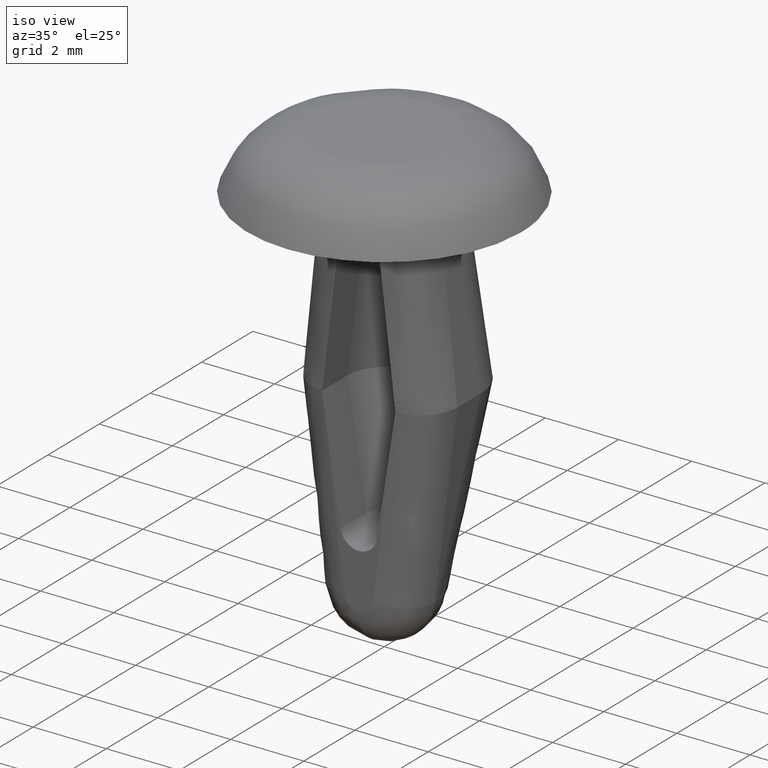
[diagram: clean part render]
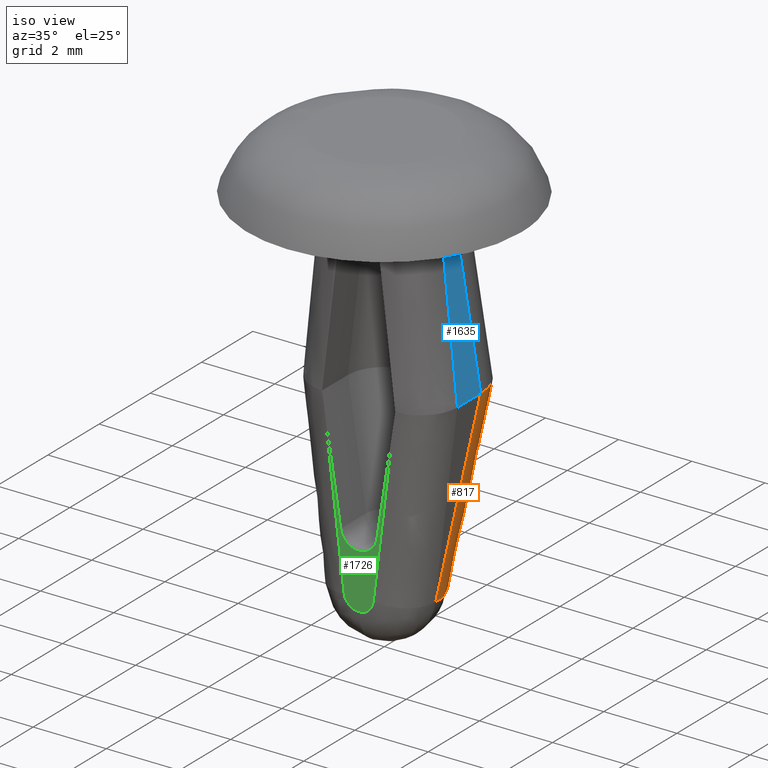
[diagram: same view with three faces highlighted in distinct colors, each labeled with its STEP entity id]
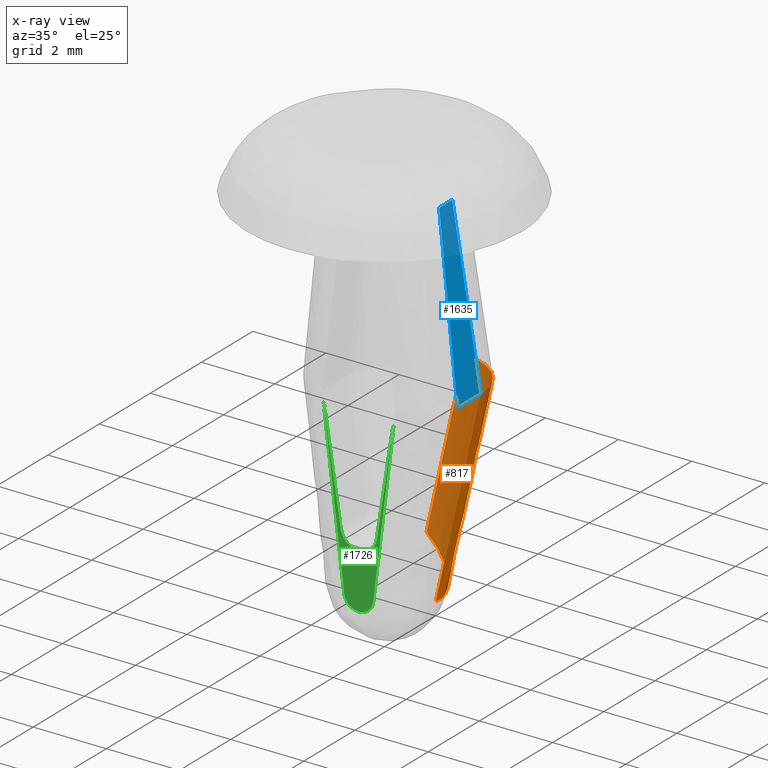
[diagram: x-ray of the same camera — body ghosted, the three highlighted faces saturated]
A machine part, iso view with three faces highlighted in distinct colors.
The next image is the same camera in x-ray (body ghosted, the three faces saturated) — at least one of them is partly hidden behind the body in this view.
Their STEP definitions:

[orange] entity #817 — the highlighted face is a freeform B-spline surface patch.
#547=CARTESIAN_POINT('',(-0.000000418702529,1.645494502491510,-9.042271304584160));
#548=VERTEX_POINT('',#547);
#724=CARTESIAN_POINT('',(1.389560529295354,0.024928488902565,-9.770648330865120));
#725=VERTEX_POINT('',#724);
#726=CARTESIAN_POINT('',(-0.000000418702529,1.645494502491510,-9.042271304584160));
#727=CARTESIAN_POINT('',(1.360520914315762,1.473893205990461,-10.007110402412607));
#728=CARTESIAN_POINT('',(1.389560529295354,0.024928488902565,-9.770648330865120));
#736=(BOUNDED_CURVE()B_SPLINE_CURVE(2,(#726,#727,#728),.UNSPECIFIED.,.F.,.U.)CURVE()GEOMETRIC_REPRESENTATION_ITEM()QUASI_UNIFORM_CURVE()RATIONAL_B_SPLINE_CURVE((1.0,0.714613293480517,1.0))REPRESENTATION_ITEM(''));
#737=EDGE_CURVE('',#548,#725,#736,.T.);
#758=CARTESIAN_POINT('',(-0.159652838794141,1.479407889092201,-9.972230576318115));
#759=CARTESIAN_POINT('',(0.496886918963579,2.430224809855529,-4.626202552436303));
#760=CARTESIAN_POINT('',(1.450201535181682,1.493349490186321,-10.172414583240140));
#761=CARTESIAN_POINT('',(2.106741292939402,2.444166410949650,-4.826386559358332));
#762=CARTESIAN_POINT('',(1.372545218096927,-0.100395840816531,-9.879422387779316));
#763=CARTESIAN_POINT('',(2.029084975854648,0.850421079946797,-4.533394363897503));
#771=(BOUNDED_SURFACE()B_SPLINE_SURFACE(1,2,((#758,#760,#762),(#759,#761,#763)),.UNSPECIFIED.,.F.,.F.,.U.)B_SPLINE_SURFACE_WITH_KNOTS((2,2),(3,3),(0.0,5.469470989269082),(0.0,2.624035839869206),.UNSPECIFIED.)GEOMETRIC_REPRESENTATION_ITEM()RATIONAL_B_SPLINE_SURFACE(((1.0,0.677557345320954,0.996089581025577),(1.0,0.677557345320954,0.996089581025577)))REPRESENTATION_ITEM('')SURFACE());
#772=CARTESIAN_POINT('',(0.520943819466832,2.399938678297810,-4.800361407695790));
#773=VERTEX_POINT('',#772);
#774=CARTESIAN_POINT('',(2.000001623200230,0.908983743961644,-4.799989782713739));
#775=VERTEX_POINT('',#774);
#776=CARTESIAN_POINT('',(0.520943819466832,2.399938678297810,-4.800361407695790));
#777=CARTESIAN_POINT('',(0.618884103170182,2.399233366905667,-4.804326990921790));
#778=CARTESIAN_POINT('',(0.715780886173529,2.389095961059905,-4.807319905411250));
#779=CARTESIAN_POINT('',(0.859538772959732,2.359673362047377,-4.810806485591058));
#780=CARTESIAN_POINT('',(0.906947518512434,2.347510272183143,-4.811789747635078));
#781=CARTESIAN_POINT('',(0.999630959070378,2.318863757834561,-4.813430339287654));
#782=CARTESIAN_POINT('',(1.090528925581082,2.285829076609933,-4.814753099230432));
#783=CARTESIAN_POINT('',(1.177883793335737,2.244088853452452,-4.815520424814058));
#784=CARTESIAN_POINT('',(1.263431246731924,2.197908725505066,-4.816036103585936));
#785=CARTESIAN_POINT('',(1.305517899345404,2.172438069273731,-4.816167584576827));
#786=CARTESIAN_POINT('',(1.426684750616770,2.090641800939267,-4.816212913102325));
#787=CARTESIAN_POINT('',(1.501091026351683,2.028915711152891,-4.815788719153205));
#788=CARTESIAN_POINT('',(1.603318062746900,1.925730195505545,-4.814637877312135));
#789=CARTESIAN_POINT('',(1.635819179930320,1.889556728783031,-4.814167613132538));
#790=CARTESIAN_POINT('',(1.697565644319385,1.813532543464080,-4.813075695626242));
#791=CARTESIAN_POINT('',(1.726387246388040,1.774190512853013,-4.812461277628021));
#792=CARTESIAN_POINT('',(1.806465720604447,1.652902193336813,-4.810473213843427));
#793=CARTESIAN_POINT('',(1.851600222984605,1.567470094839923,-4.808947501559089));
#794=CARTESIAN_POINT('',(1.906844481790242,1.432413480060798,-4.806586338203886));
#795=CARTESIAN_POINT('',(1.923217079821123,1.386011577498836,-4.805784229400286));
#796=CARTESIAN_POINT('',(1.951076827286609,1.292731784356880,-4.804244490599771));
#797=CARTESIAN_POINT('',(1.962653640848110,1.245692341359379,-4.803503524564784));
#798=CARTESIAN_POINT('',(1.990502896841904,1.103404241093388,-4.801474837513355));
#799=CARTESIAN_POINT('',(1.999957878426999,1.006997059844217,-4.800345984727122));
#800=CARTESIAN_POINT('',(2.000001623200230,0.908983743961644,-4.799989782713739));
#801=B_SPLINE_CURVE_WITH_KNOTS('',3,(#776,#777,#778,#779,#780,#781,#782,#783,#784,#785,#786,#787,#788,#789,#790,#791,#792,#793,#794,#795,#796,#797,#798,#799,#800),.UNSPECIFIED.,.F.,.U.,(4,2,2,1,2,2,2,2,2,2,2,2,4),(0.0,0.125000000000000,0.187500000000000,0.250000000000000,0.312500000000000,0.375000000000000,0.500000000000000,0.562500000000000,0.625000000000000,0.750000000000000,0.812500000000000,0.875000000000000,1.0),.UNSPECIFIED.);
#802=EDGE_CURVE('',#773,#775,#801,.T.);
#803=ORIENTED_EDGE('',*,*,#802,.T.);
#804=CARTESIAN_POINT('',(1.389560529295354,0.024928488902565,-9.770648330865120));
#805=CARTESIAN_POINT('',(2.000001623200230,0.908983743961644,-4.799989782713739));
#806=QUASI_UNIFORM_CURVE('',1,(#804,#805),.UNSPECIFIED.,.F.,.U.);
#807=EDGE_CURVE('',#725,#775,#806,.T.);
#808=ORIENTED_EDGE('',*,*,#807,.F.);
#809=ORIENTED_EDGE('',*,*,#737,.F.);
#810=CARTESIAN_POINT('',(0.520943819466832,2.399938678297810,-4.800361407695790));
#811=CARTESIAN_POINT('',(-0.000000418702529,1.645494502491510,-9.042271304584160));
#812=QUASI_UNIFORM_CURVE('',1,(#810,#811),.UNSPECIFIED.,.F.,.U.);
#813=EDGE_CURVE('',#773,#548,#812,.T.);
#814=ORIENTED_EDGE('',*,*,#813,.F.);
#815=EDGE_LOOP('',(#803,#808,#809,#814));
#816=FACE_OUTER_BOUND('',#815,.T.);
#817=ADVANCED_FACE('',(#816),#771,.T.);

[blue] entity #1635 — the highlighted face is a freeform B-spline surface patch.
#832=CARTESIAN_POINT('',(2.000001623200230,0.907744339974759,-4.799989782713739));
#833=VERTEX_POINT('',#832);
#834=CARTESIAN_POINT('',(1.500003000000000,0.507743441419906,0.0));
#835=VERTEX_POINT('',#834);
#836=CARTESIAN_POINT('',(2.000001623200230,0.907744339974759,-4.799989782713739));
#837=CARTESIAN_POINT('',(1.500003000000000,0.507743441419906,0.0));
#838=QUASI_UNIFORM_CURVE('',1,(#836,#837),.UNSPECIFIED.,.F.,.U.);
#839=EDGE_CURVE('',#833,#835,#838,.T.);
#975=CARTESIAN_POINT('',(2.000001623200230,0.0,-4.799989782713739));
#976=VERTEX_POINT('',#975);
#992=CARTESIAN_POINT('',(1.500003000000000,0.0,0.0));
#993=VERTEX_POINT('',#992);
#994=CARTESIAN_POINT('',(1.500003000000000,0.0,0.0));
#995=CARTESIAN_POINT('',(2.000001623200230,0.0,-4.799989782713739));
#996=QUASI_UNIFORM_CURVE('',1,(#994,#995),.UNSPECIFIED.,.F.,.U.);
#997=EDGE_CURVE('',#993,#976,#996,.T.);
#1603=CARTESIAN_POINT('',(1.500003000000000,0.507743441419906,0.0));
#1604=CARTESIAN_POINT('',(1.500003000000000,0.0,0.0));
#1605=QUASI_UNIFORM_CURVE('',1,(#1603,#1604),.UNSPECIFIED.,.F.,.U.);
#1606=EDGE_CURVE('',#835,#993,#1605,.T.);
#1620=CARTESIAN_POINT('',(1.475028071526602,-0.045341828022354,0.239759463194306));
#1621=CARTESIAN_POINT('',(2.024976529321960,-0.045341828022354,-5.039749031331781));
#1622=CARTESIAN_POINT('',(1.475028071526602,0.953086192344714,0.239759463194306));
#1623=CARTESIAN_POINT('',(2.024976529321960,0.953086192344714,-5.039749031331781));
#1624=B_SPLINE_SURFACE_WITH_KNOTS('',1,1,((#1620,#1622),(#1621,#1623)),.UNSPECIFIED.,.F.,.F.,.U.,(2,2),(2,2),(0.0,5.308074344807598),(0.041708334948495,0.958291687403247),.UNSPECIFIED.);
#1625=CARTESIAN_POINT('',(2.000001623200230,0.907744339974759,-4.799989782713739));
#1626=CARTESIAN_POINT('',(2.000001623200230,0.0,-4.799989782713739));
#1627=QUASI_UNIFORM_CURVE('',1,(#1625,#1626),.UNSPECIFIED.,.F.,.U.);
#1628=EDGE_CURVE('',#833,#976,#1627,.T.);
#1629=ORIENTED_EDGE('',*,*,#1628,.F.);
#1630=ORIENTED_EDGE('',*,*,#839,.T.);
#1631=ORIENTED_EDGE('',*,*,#1606,.T.);
#1632=ORIENTED_EDGE('',*,*,#997,.T.);
#1633=EDGE_LOOP('',(#1629,#1630,#1631,#1632));
#1634=FACE_OUTER_BOUND('',#1633,.T.);
#1635=ADVANCED_FACE('',(#1634),#1624,.T.);

[green] entity #1726 — the highlighted face is a freeform B-spline surface patch.
#89=CARTESIAN_POINT('',(-7.832641E-014,-1.0,-9.999998000003195));
#90=VERTEX_POINT('',#89);
#106=CARTESIAN_POINT('',(-0.397016716563887,-1.0,-9.648759939756531));
#107=VERTEX_POINT('',#106);
#108=CARTESIAN_POINT('',(-0.397016716563900,-1.0,-9.648759939756532));
#109=CARTESIAN_POINT('',(-0.353877351345182,-1.0,-9.999997999999863));
#110=CARTESIAN_POINT('',(-7.832641E-014,-1.0,-9.999998000003195));
#118=(BOUNDED_CURVE()B_SPLINE_CURVE(2,(#108,#109,#110),.UNSPECIFIED.,.F.,.U.)B_SPLINE_CURVE_WITH_KNOTS((3,3),(0.0,0.499997765606387),.UNSPECIFIED.)CURVE()GEOMETRIC_REPRESENTATION_ITEM()RATIONAL_B_SPLINE_CURVE((1.0,0.748966732323273,0.999997756371480))REPRESENTATION_ITEM(''));
#119=EDGE_CURVE('',#107,#90,#118,.T.);
#177=CARTESIAN_POINT('',(0.397017337544821,-1.0,-9.648755242727290));
#178=VERTEX_POINT('',#177);
#194=CARTESIAN_POINT('',(-7.832641E-014,-1.0,-9.999998000003195));
#195=CARTESIAN_POINT('',(0.000001184424393,-1.0,-9.999998000000002));
#196=CARTESIAN_POINT('',(0.000002368848943,-1.0,-9.999997999992987));
#197=CARTESIAN_POINT('',(0.353881831646062,-1.0,-9.999995904275508));
#198=CARTESIAN_POINT('',(0.397017337544821,-1.0,-9.648755242727290));
#206=(BOUNDED_CURVE()B_SPLINE_CURVE(2,(#194,#195,#196,#197,#198),.UNSPECIFIED.,.F.,.U.)B_SPLINE_CURVE_WITH_KNOTS((3,2,3),(0.499997765606387,0.500000000000000,1.0),.UNSPECIFIED.)CURVE()GEOMETRIC_REPRESENTATION_ITEM()RATIONAL_B_SPLINE_CURVE((0.999997756371481,0.999998878180727,1.0,0.748965610504000,1.0))REPRESENTATION_ITEM(''));
#207=EDGE_CURVE('',#90,#178,#206,.T.);
#1075=CARTESIAN_POINT('',(-0.963285192313334,-1.0,-5.037787821478281));
#1076=VERTEX_POINT('',#1075);
#1077=CARTESIAN_POINT('',(-0.963285192313334,-1.0,-5.037787821478281));
#1078=CARTESIAN_POINT('',(-0.397016716563887,-1.0,-9.648759939756531));
#1079=QUASI_UNIFORM_CURVE('',1,(#1077,#1078),.UNSPECIFIED.,.F.,.U.);
#1080=EDGE_CURVE('',#1076,#107,#1079,.T.);
#1133=CARTESIAN_POINT('',(0.963285120805589,-1.0,-5.037787814535570));
#1134=VERTEX_POINT('',#1133);
#1148=CARTESIAN_POINT('',(0.397017337544821,-1.0,-9.648755242727290));
#1149=CARTESIAN_POINT('',(0.963285120805589,-1.0,-5.037787814535570));
#1150=QUASI_UNIFORM_CURVE('',1,(#1148,#1149),.UNSPECIFIED.,.F.,.U.);
#1151=EDGE_CURVE('',#178,#1134,#1150,.T.);
#1396=CARTESIAN_POINT('',(0.494144000000000,-1.0,-8.076293999999999));
#1397=VERTEX_POINT('',#1396);
#1398=CARTESIAN_POINT('',(0.963285120805589,-1.0,-5.037787814535570));
#1399=CARTESIAN_POINT('',(0.494144000000000,-1.0,-8.076293999999999));
#1400=QUASI_UNIFORM_CURVE('',1,(#1398,#1399),.UNSPECIFIED.,.F.,.U.);
#1401=EDGE_CURVE('',#1134,#1397,#1400,.T.);
#1433=CARTESIAN_POINT('',(-0.494145271980853,-1.0,-8.076292238446632));
#1434=VERTEX_POINT('',#1433);
#1440=CARTESIAN_POINT('',(-0.494145271980852,-1.0,-8.076292238446632));
#1441=CARTESIAN_POINT('',(-0.428726075238490,-1.0,-8.499996360908211));
#1442=CARTESIAN_POINT('',(-0.000001391212986,-1.0,-8.499997125078435));
#1443=CARTESIAN_POINT('',(0.428723292812519,-1.0,-8.499997889248663));
#1444=CARTESIAN_POINT('',(0.494144000000000,-1.0,-8.076293999999999));
#1452=(BOUNDED_CURVE()B_SPLINE_CURVE(2,(#1440,#1441,#1442,#1443,#1444),.UNSPECIFIED.,.F.,.U.)B_SPLINE_CURVE_WITH_KNOTS((3,2,3),(0.0,0.500000000000000,1.0),.UNSPECIFIED.)CURVE()GEOMETRIC_REPRESENTATION_ITEM()RATIONAL_B_SPLINE_CURVE((1.0,0.759141616659239,1.0,0.759141616659239,1.0))REPRESENTATION_ITEM(''));
#1453=EDGE_CURVE('',#1434,#1397,#1452,.T.);
#1470=CARTESIAN_POINT('',(-0.494145271980853,-1.0,-8.076292238446632));
#1471=CARTESIAN_POINT('',(-0.963285192313334,-1.0,-5.037787821478281));
#1472=QUASI_UNIFORM_CURVE('',1,(#1470,#1471),.UNSPECIFIED.,.F.,.U.);
#1473=EDGE_CURVE('',#1434,#1076,#1472,.T.);
#1712=CARTESIAN_POINT('',(-1.059517393804821,-1.0,-10.247860464584431));
#1713=CARTESIAN_POINT('',(1.059517356746838,-1.0,-10.247860464584431));
#1714=CARTESIAN_POINT('',(-1.059517393804821,-1.0,-4.789925660513645));
#1715=CARTESIAN_POINT('',(1.059517356746838,-1.0,-4.789925660513645));
#1716=B_SPLINE_SURFACE_WITH_KNOTS('',1,1,((#1712,#1714),(#1713,#1715)),.UNSPECIFIED.,.F.,.F.,.U.,(2,2),(2,2),(0.0,2.119034750551658),(0.0,5.457934804070789),.UNSPECIFIED.);
#1717=ORIENTED_EDGE('',*,*,#1473,.T.);
#1718=ORIENTED_EDGE('',*,*,#1080,.T.);
#1719=ORIENTED_EDGE('',*,*,#119,.T.);
#1720=ORIENTED_EDGE('',*,*,#207,.T.);
#1721=ORIENTED_EDGE('',*,*,#1151,.T.);
#1722=ORIENTED_EDGE('',*,*,#1401,.T.);
#1723=ORIENTED_EDGE('',*,*,#1453,.F.);
#1724=EDGE_LOOP('',(#1717,#1718,#1719,#1720,#1721,#1722,#1723));
#1725=FACE_OUTER_BOUND('',#1724,.T.);
#1726=ADVANCED_FACE('',(#1725),#1716,.T.);